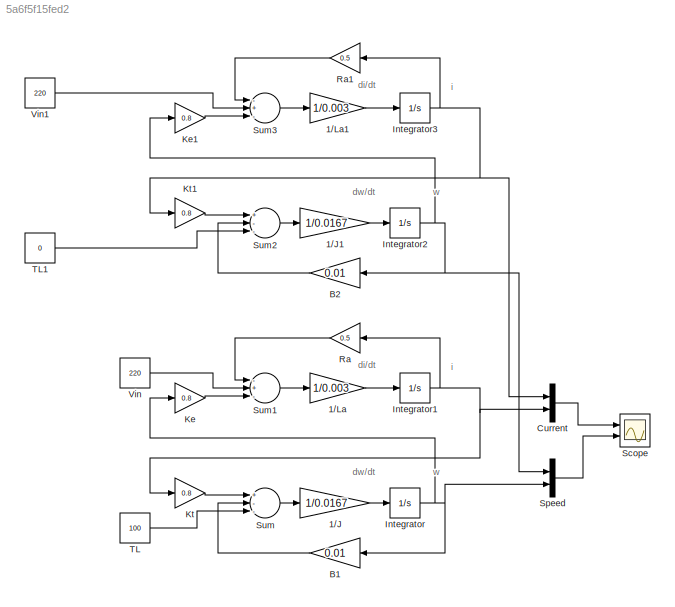
MODEL slx_5a6f5f15fed2
KIND model
CONFIG AbsTol = auto
CONFIG EnableMultiTasking = on
CONFIG FixedStep = auto
CONFIG MaxStep = auto
CONFIG MinStep = auto
CONFIG RelTol = 1e-3
CONFIG SampleTimeConstraint = Unconstrained
CONFIG Solver = ode45
CONFIG SolverName = ode45
CONFIG StartTime = 0.0
CONFIG StopTime = 0.1
BLOCK [Gain] 1//J
  Gain = 1/0.0167
BLOCK [Gain] 1//J1
  Gain = 1/0.0167
BLOCK [Gain] 1//La
  Gain = 1/0.003
BLOCK [Gain] 1//La1
  Gain = 1/0.003
BLOCK [Gain] B1
  Gain = 0.01
BLOCK [Gain] B2
  Gain = 0.01
BLOCK [Mux] Current
  DisplayOption = bar
  Inputs = 2
  Ports = [2, 1]
BLOCK [Integrator] Integrator
  Ports = [1, 1]
BLOCK [Integrator] Integrator1
  Ports = [1, 1]
BLOCK [Integrator] Integrator2
  Ports = [1, 1]
BLOCK [Integrator] Integrator3
  Ports = [1, 1]
BLOCK [Gain] Ke
  Gain = 0.8
BLOCK [Gain] Ke1
  Gain = 0.8
BLOCK [Gain] Kt
  Gain = 0.8
BLOCK [Gain] Kt1
  Gain = 0.8
BLOCK [Gain] Ra
  Gain = 0.5
BLOCK [Gain] Ra1
  Gain = 0.5
BLOCK [Scope] Scope
  Floating = off
  NumInputPorts = 2
  Ports = [2]
  ScopeSpecificationString = Simulink.scopes.TimeScopeBlockCfg('CurrentConfiguration', extmgr.ConfigurationSet(extmgr.Configuration('Core','General UI',true,'FigureColor',[1 1 1]),extmgr.Configuration('Core','Source UI',true),extmgr.Configuration('Sources','WiredSimulink',true),extmgr.Configuration('Visuals','Time Domain',true,'TimeAxisLabels','All','SerializedDisplays',{struct('MinYLimReal','-48.76115','MaxYLimReal','380.413...<+2625ch>
BLOCK [Mux] Speed
  DisplayOption = bar
  Inputs = 2
  Ports = [2, 1]
BLOCK [Sum] Sum
  Inputs = +--
  Ports = [3, 1]
BLOCK [Sum] Sum1
  Inputs = -+-
  Ports = [3, 1]
BLOCK [Sum] Sum2
  Inputs = +--
  Ports = [3, 1]
BLOCK [Sum] Sum3
  Inputs = -+-
  Ports = [3, 1]
BLOCK [Constant] TL
  Value = 100
BLOCK [Constant] TL1
  Value = 0
BLOCK [Constant] Vin
  Value = 220
BLOCK [Constant] Vin1
  Value = 220
ANNOTATION (root): di/dt
ANNOTATION (root): dw/dt
ANNOTATION (root): i
ANNOTATION (root): w
LINE 1//J1:1 -> Integrator2:1
LINE 1//J:1 -> Integrator:1
LINE 1//La1:1 -> Integrator3:1
LINE 1//La:1 -> Integrator1:1
LINE B1:1 -> Sum:2
LINE B2:1 -> Sum2:2
LINE Current:1 -> Scope:1
NET Integrator1:1 -> Current:2, Kt:1, Ra:1
NET Integrator2:1 -> B2:1, Ke1:1, Speed:1
NET Integrator3:1 -> Current:1, Kt1:1, Ra1:1
NET Integrator:1 -> B1:1, Ke:1, Speed:2
LINE Ke1:1 -> Sum3:3
LINE Ke:1 -> Sum1:3
LINE Kt1:1 -> Sum2:1
LINE Kt:1 -> Sum:1
LINE Ra1:1 -> Sum3:1
LINE Ra:1 -> Sum1:1
LINE Speed:1 -> Scope:2
LINE Sum1:1 -> 1//La:1
LINE Sum2:1 -> 1//J1:1
LINE Sum3:1 -> 1//La1:1
LINE Sum:1 -> 1//J:1
LINE TL1:1 -> Sum2:3
LINE TL:1 -> Sum:3
LINE Vin1:1 -> Sum3:2
LINE Vin:1 -> Sum1:2
note: NET lines group one-source signal fan-out (src -> all destinations, sorted); 1:1 wires keep LINE
